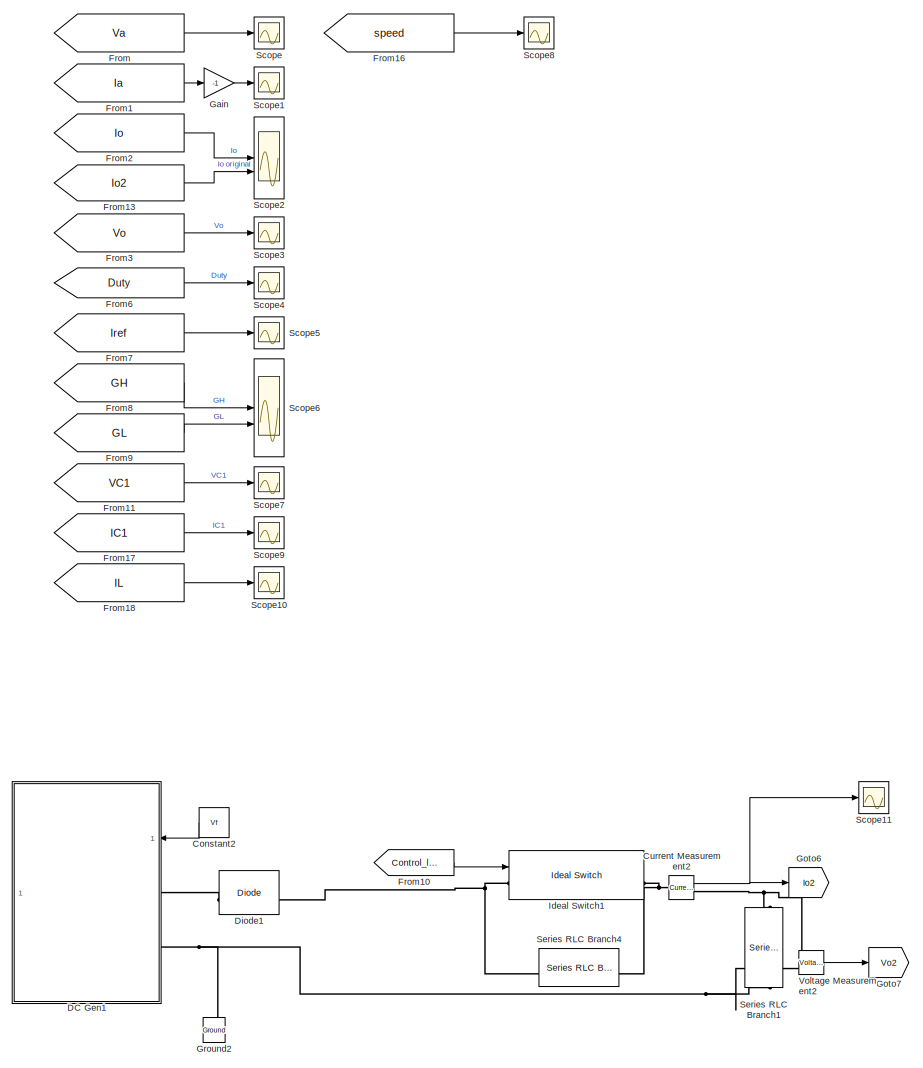
[diagram: root canvas - part 1/3, right side, full height]
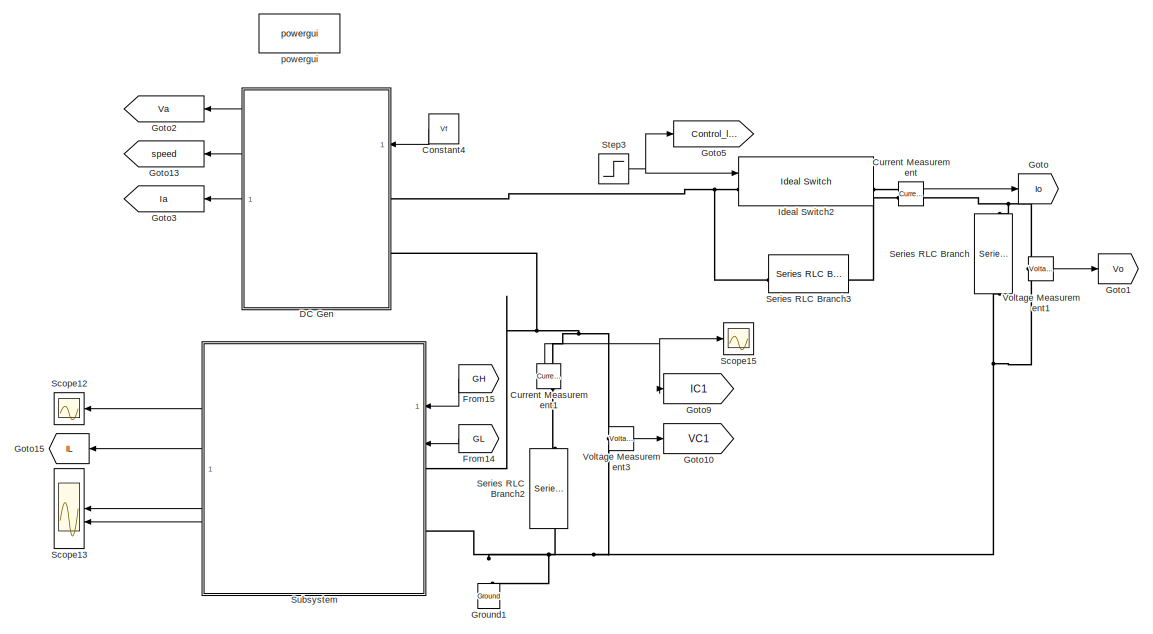
[diagram: root canvas - part 2/3, top left region]
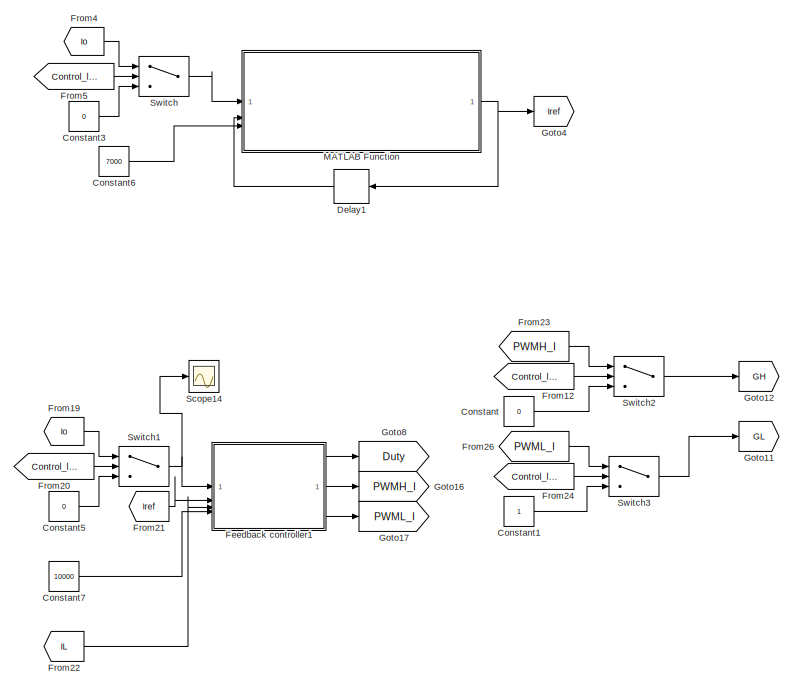
[diagram: root canvas - part 3/3, bottom left region]
MODEL slx_ac796de1ffbd
KIND model
CONFIG AbsTol = auto
CONFIG EnableMultiTasking = off
CONFIG FixedStep = auto
CONFIG MaxStep = auto
CONFIG MinStep = auto
CONFIG RelTol = 1e-3
CONFIG SampleTimeConstraint = Unconstrained
CONFIG SolverName = VariableStepAuto
CONFIG StartTime = 0.0
CONFIG StopTime = 10.0
BLOCK [Constant] Constant
  Value = 0
BLOCK [Constant] Constant1
BLOCK [Constant] Constant2
  NameLocation = top
  Value = Vf
BLOCK [Constant] Constant3
  Value = 0
BLOCK [Constant] Constant4
  NameLocation = top
  Value = Vf
BLOCK [Constant] Constant5
  Value = 0
BLOCK [Constant] Constant6
  Value = 7000
BLOCK [Constant] Constant7
  Value = 10000
BLOCK [Reference] Current Measurement  REF=spsCurrentMeasurementLib/Current Measurement
  LibrarySourceBlock = sps_lib/Sensors and Measurements/Current Measurement
  SourceBlock = spsCurrentMeasurementLib/Current Measurement
  SourceType = Current Measurement
  UserDataPersistent = on
BLOCK [Reference] Current Measurement1  REF=spsCurrentMeasurementLib/Current Measurement
  LibrarySourceBlock = sps_lib/Sensors and Measurements/Current Measurement
  NameLocation = right
  SourceBlock = spsCurrentMeasurementLib/Current Measurement
  SourceType = Current Measurement
  UserDataPersistent = on
BLOCK [Reference] Current Measurement2  REF=spsCurrentMeasurementLib/Current Measurement
  LibrarySourceBlock = sps_lib/Sensors and Measurements/Current Measurement
  SourceBlock = spsCurrentMeasurementLib/Current Measurement
  SourceType = Current Measurement
  UserDataPersistent = on
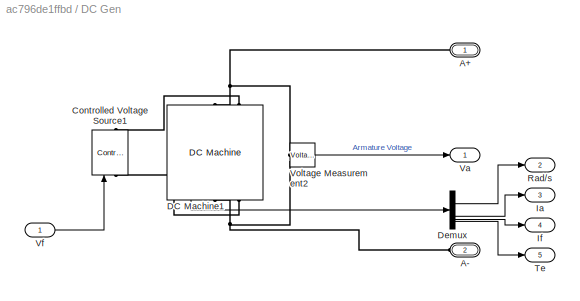
BLOCK [SubSystem] DC Gen
  NameLocation = top
BLOCK [PMIOPort] DC Gen/A+
  NameLocation = top
  Side = Left
BLOCK [PMIOPort] DC Gen/A-
  NameLocation = top
  Port = 2
  Side = Left
BLOCK [Reference] DC Gen/Controlled Voltage Source1  REF=spsControlledVoltageSourceLib/Controlled Voltage Source
  LibrarySourceBlock = sps_lib/Sources/Controlled Voltage Source
  NameLocation = right
  SourceBlock = spsControlledVoltageSourceLib/Controlled Voltage Source
  SourceType = Controlled Voltage Source
BLOCK [Reference] DC Gen/DC Machine1  REF=spsDCMachineLib/DC Machine
  LibrarySourceBlock = sps_lib/Electrical Machines/DC Machine
  NameLocation = left
  SourceBlock = spsDCMachineLib/DC Machine
  SourceType = DC machine
BLOCK [Demux] DC Gen/Demux
BLOCK [Outport] DC Gen/Ia
  Port = 3
BLOCK [Outport] DC Gen/If
  Port = 4
BLOCK [Outport] DC Gen/Rad//s
  Port = 2
BLOCK [Outport] DC Gen/Te
  Port = 5
BLOCK [Outport] DC Gen/Va
BLOCK [Inport] DC Gen/Vf
BLOCK [Reference] DC Gen/Voltage Measurement2  REF=spsVoltageMeasurementLib/Voltage Measurement
  LibrarySourceBlock = sps_lib/Sensors and Measurements/Voltage Measurement
  SourceBlock = spsVoltageMeasurementLib/Voltage Measurement
  SourceType = Voltage Measurement
  UserDataPersistent = on
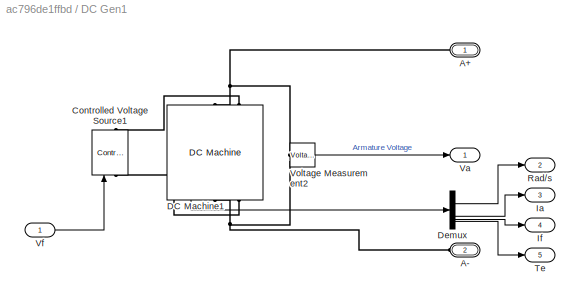
BLOCK [SubSystem] DC Gen1
  NameLocation = top
BLOCK [PMIOPort] DC Gen1/A+
  NameLocation = top
  Side = Left
BLOCK [PMIOPort] DC Gen1/A-
  NameLocation = top
  Port = 2
  Side = Left
BLOCK [Reference] DC Gen1/Controlled Voltage Source1  REF=spsControlledVoltageSourceLib/Controlled Voltage Source
  LibrarySourceBlock = sps_lib/Sources/Controlled Voltage Source
  NameLocation = right
  SourceBlock = spsControlledVoltageSourceLib/Controlled Voltage Source
  SourceType = Controlled Voltage Source
BLOCK [Reference] DC Gen1/DC Machine1  REF=spsDCMachineLib/DC Machine
  LibrarySourceBlock = sps_lib/Electrical Machines/DC Machine
  NameLocation = left
  SourceBlock = spsDCMachineLib/DC Machine
  SourceType = DC machine
BLOCK [Demux] DC Gen1/Demux
BLOCK [Outport] DC Gen1/Ia
  Port = 3
BLOCK [Outport] DC Gen1/If
  Port = 4
BLOCK [Outport] DC Gen1/Rad//s
  Port = 2
BLOCK [Outport] DC Gen1/Te
  Port = 5
BLOCK [Outport] DC Gen1/Va
BLOCK [Inport] DC Gen1/Vf
BLOCK [Reference] DC Gen1/Voltage Measurement2  REF=spsVoltageMeasurementLib/Voltage Measurement
  LibrarySourceBlock = sps_lib/Sensors and Measurements/Voltage Measurement
  SourceBlock = spsVoltageMeasurementLib/Voltage Measurement
  SourceType = Voltage Measurement
  UserDataPersistent = on
BLOCK [Delay] Delay1
  DelayLength = 1
  InitialCondition = 0
  InputPortMap = u0
  NameLocation = top
  SampleTime = Tsamp
BLOCK [Reference] Diode1  REF=spsDiodeLib/Diode
  LibrarySourceBlock = sps_lib/Power Electronics/Diode
  SourceBlock = spsDiodeLib/Diode
  SourceType = Diode
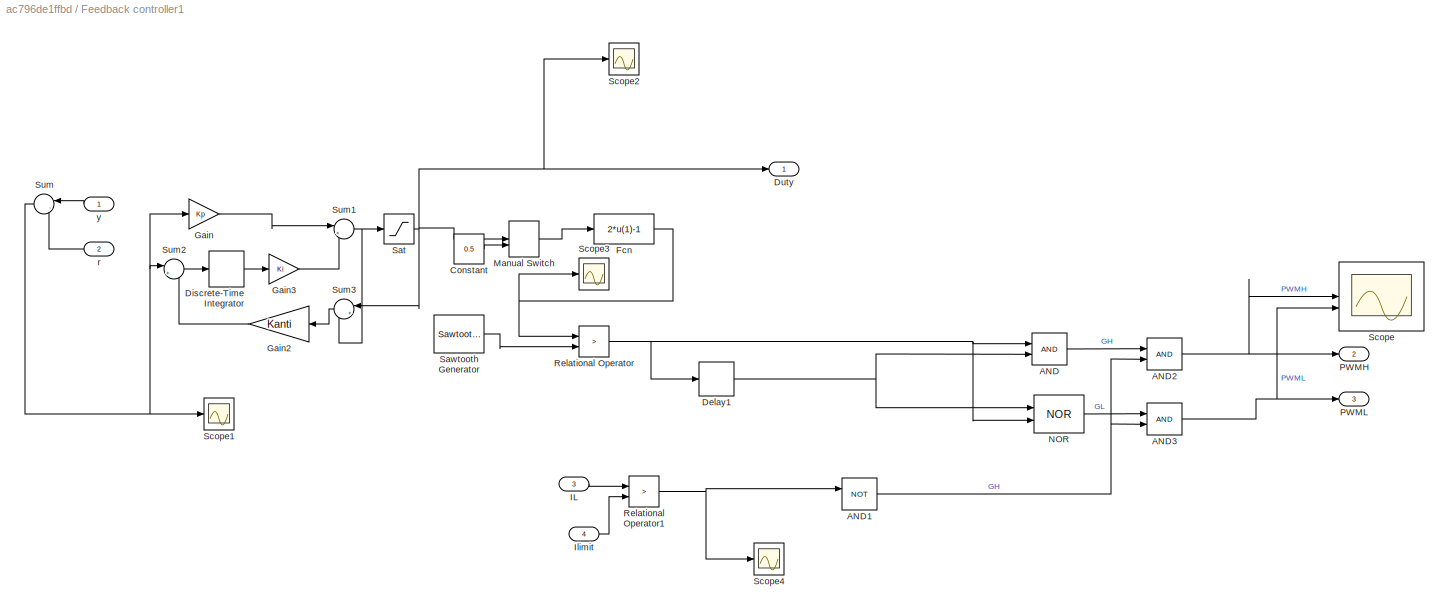
BLOCK [SubSystem] Feedback controller1
  NameLocation = top
BLOCK [Logic] Feedback controller1/AND
  AllPortsSameDT = off
  IconShape = distinctive
  OutDataTypeStr = boolean
BLOCK [Logic] Feedback controller1/AND1
  AllPortsSameDT = off
  IconShape = distinctive
  Operator = NOT
  OutDataTypeStr = boolean
BLOCK [Logic] Feedback controller1/AND2
  AllPortsSameDT = off
  IconShape = distinctive
  OutDataTypeStr = boolean
BLOCK [Logic] Feedback controller1/AND3
  AllPortsSameDT = off
  IconShape = distinctive
  OutDataTypeStr = boolean
BLOCK [Constant] Feedback controller1/Constant
  Value = 0.5
BLOCK [Delay] Feedback controller1/Delay1
  DelayLength = 1
  InitialCondition = 0
  InputPortMap = u0
  SampleTime = Tsamp
BLOCK [DiscreteIntegrator] Feedback controller1/Discrete-Time Integrator
  ICPrevOutput = DiscIntNeverNeededParam
  ICPrevScaledInput = DiscIntNeverNeededParam
  InitialConditionSetting = Auto
  SampleTime = Tsamp
BLOCK [Outport] Feedback controller1/Duty
  VectorParamsAs1DForOutWhenUnconnected = off
BLOCK [Fcn] Feedback controller1/Fcn
  Expr = 2*u(1)-1
BLOCK [Gain] Feedback controller1/Gain
  Gain = Kp
BLOCK [Gain] Feedback controller1/Gain2
  Gain = Kanti
  NameLocation = top
BLOCK [Gain] Feedback controller1/Gain3
  Gain = Ki
BLOCK [Inport] Feedback controller1/IL
  NameLocation = top
  Port = 3
BLOCK [Inport] Feedback controller1/Ilimit
  NameLocation = top
  Port = 4
BLOCK [ManualSwitch] Feedback controller1/Manual Switch
BLOCK [Logic] Feedback controller1/NOR
  AllPortsSameDT = off
  IconShape = distinctive
  Operator = NOR
BLOCK [Outport] Feedback controller1/PWMH
  Port = 2
  VectorParamsAs1DForOutWhenUnconnected = off
BLOCK [Outport] Feedback controller1/PWML
  Port = 3
  VectorParamsAs1DForOutWhenUnconnected = off
BLOCK [RelationalOperator] Feedback controller1/Relational Operator
  InputSameDT = off
  Operator = >
  OutDataTypeStr = boolean
  RndMeth = Simplest
BLOCK [RelationalOperator] Feedback controller1/Relational Operator1
  InputSameDT = off
  Operator = >
  OutDataTypeStr = boolean
  RndMeth = Simplest
BLOCK [Saturate] Feedback controller1/Sat
  LowerLimit = 0
  UpperLimit = 1
BLOCK [Reference] Feedback controller1/Sawtooth Generator  REF=spsSawtoothGeneratorLib/Sawtooth
Generator
  LibrarySourceBlock = sps_lib/Sources/Signal Generator Sources/Sawtooth\nGenerator
  SourceBlock = spsSawtoothGeneratorLib/Sawtooth\nGenerator
  SourceType = Sawtooth Generator
BLOCK [Scope] Feedback controller1/Scope
  Floating = off
  NumInputPorts = 2
  ScopeSpecificationString = Simulink.scopes.TimeScopeBlockCfg('CurrentConfiguration', extmgr.ConfigurationSet(extmgr.Configuration('Core','General UI',true),extmgr.Configuration('Core','Source UI',true),extmgr.Configuration('Sources','WiredSimulink',true,'DataLoggingVariableName','ScopeData3'),extmgr.Configuration('Visuals','Time Domain',true,'SerializedDisplays',{struct('MinYLimReal','-0.125','MaxYLimReal','1.125','YLabelRe...<+1429ch>
BLOCK [Scope] Feedback controller1/Scope1
  Floating = off
  NumInputPorts = 1
  ScopeSpecificationString = Simulink.scopes.TimeScopeBlockCfg('CurrentConfiguration', extmgr.ConfigurationSet(extmgr.Configuration('Core','General UI',true),extmgr.Configuration('Core','Source UI',true),extmgr.Configuration('Sources','WiredSimulink',true,'DataLoggingVariableName','ScopeData15'),extmgr.Configuration('Visuals','Time Domain',true,'SerializedDisplays',{struct('MinYLimReal','-886.78083','MaxYLimReal','7981.02746'...<+1434ch>
BLOCK [Scope] Feedback controller1/Scope2
  Floating = off
  NumInputPorts = 1
  ScopeSpecificationString = Simulink.scopes.TimeScopeBlockCfg('CurrentConfiguration', extmgr.ConfigurationSet(extmgr.Configuration('Core','General UI',true),extmgr.Configuration('Core','Source UI',true),extmgr.Configuration('Sources','WiredSimulink',true,'DataLoggingVariableName','ScopeData2'),extmgr.Configuration('Visuals','Time Domain',true,'SerializedDisplays',{struct('MinYLimReal','-1.00000','MaxYLimReal','1.00000','YLab...<+1435ch>
BLOCK [Scope] Feedback controller1/Scope3
  Floating = off
  NumInputPorts = 1
  ScopeSpecificationString = Simulink.scopes.TimeScopeBlockCfg('CurrentConfiguration', extmgr.ConfigurationSet(extmgr.Configuration('Core','General UI',true),extmgr.Configuration('Core','Source UI',true),extmgr.Configuration('Sources','WiredSimulink',true,'DataLoggingVariableName','ScopeData7'),extmgr.Configuration('Visuals','Time Domain',true,'SerializedDisplays',{struct('MinYLimReal','-1.00000','MaxYLimReal','1.00000','YLab...<+1435ch>
BLOCK [Scope] Feedback controller1/Scope4
  Floating = off
  NumInputPorts = 1
  ScopeSpecificationString = Simulink.scopes.TimeScopeBlockCfg('CurrentConfiguration', extmgr.ConfigurationSet(extmgr.Configuration('Core','General UI',true),extmgr.Configuration('Core','Source UI',true),extmgr.Configuration('Sources','WiredSimulink',true,'DataLoggingVariableName','ScopeData9'),extmgr.Configuration('Visuals','Time Domain',true,'SerializedDisplays',{struct('MinYLimReal','-0.125','MaxYLimReal','1.125','YLabelRe...<+1441ch>
BLOCK [Sum] Feedback controller1/Sum
  InputSameDT = on
  Inputs = |-+
  OutDataTypeStr = Inherit: Same as first input
  SaturateOnIntegerOverflow = on
BLOCK [Sum] Feedback controller1/Sum1
  Inputs = |++
BLOCK [Sum] Feedback controller1/Sum2
  Inputs = |+-
BLOCK [Sum] Feedback controller1/Sum3
  Inputs = |+-
  NameLocation = top
BLOCK [Inport] Feedback controller1/r
  Port = 2
BLOCK [Inport] Feedback controller1/y
BLOCK [From] From
  GotoTag = Va
BLOCK [From] From1
  GotoTag = Ia
BLOCK [From] From10
  GotoTag = Control_load
BLOCK [From] From11
  GotoTag = VC1
BLOCK [From] From12
  GotoTag = Control_load
BLOCK [From] From13
  GotoTag = Io2
BLOCK [From] From14
  GotoTag = GL
  NameLocation = top
BLOCK [From] From15
  GotoTag = GH
  NameLocation = top
BLOCK [From] From16
  GotoTag = speed
BLOCK [From] From17
  GotoTag = IC1
BLOCK [From] From18
  GotoTag = IL
BLOCK [From] From19
  GotoTag = Io
BLOCK [From] From2
  GotoTag = Io
BLOCK [From] From20
  GotoTag = Control_load
BLOCK [From] From21
  GotoTag = Iref
BLOCK [From] From22
  GotoTag = IL
  NameLocation = top
BLOCK [From] From23
  GotoTag = PWMH_I
BLOCK [From] From24
  GotoTag = Control_load
BLOCK [From] From26
  GotoTag = PWML_I
BLOCK [From] From3
  GotoTag = Vo
BLOCK [From] From4
  GotoTag = Io
BLOCK [From] From5
  GotoTag = Control_load
BLOCK [From] From6
  GotoTag = Duty
BLOCK [From] From7
  GotoTag = Iref
BLOCK [From] From8
  GotoTag = GH
BLOCK [From] From9
  GotoTag = GL
BLOCK [Gain] Gain
  Gain = -1
BLOCK [Goto] Goto
  GotoTag = Io
BLOCK [Goto] Goto1
  GotoTag = Vo
BLOCK [Goto] Goto10
  GotoTag = VC1
BLOCK [Goto] Goto11
  GotoTag = GL
BLOCK [Goto] Goto12
  GotoTag = GH
BLOCK [Goto] Goto13
  GotoTag = speed
  NameLocation = top
BLOCK [Goto] Goto15
  GotoTag = IL
  NameLocation = top
BLOCK [Goto] Goto16
  GotoTag = PWMH_I
BLOCK [Goto] Goto17
  GotoTag = PWML_I
BLOCK [Goto] Goto2
  GotoTag = Va
  NameLocation = top
BLOCK [Goto] Goto3
  GotoTag = Ia
  NameLocation = top
BLOCK [Goto] Goto4
  GotoTag = Iref
BLOCK [Goto] Goto5
  GotoTag = Control_load
BLOCK [Goto] Goto6
  GotoTag = Io2
BLOCK [Goto] Goto7
  GotoTag = Vo2
BLOCK [Goto] Goto8
  GotoTag = Duty
BLOCK [Goto] Goto9
  GotoTag = IC1
BLOCK [Reference] Ground1  REF=spsGroundLib/Ground
  LibrarySourceBlock = sps_lib/Utilities/Ground
  NameLocation = right
  SourceBlock = spsGroundLib/Ground
  SourceType = Ground
BLOCK [Reference] Ground2  REF=spsGroundLib/Ground
  LibrarySourceBlock = sps_lib/Utilities/Ground
  NameLocation = right
  SourceBlock = spsGroundLib/Ground
  SourceType = Ground
BLOCK [Reference] Ideal Switch1  REF=spsIdealSwitchLib/Ideal Switch
  LibrarySourceBlock = sps_lib/Power Electronics/Ideal Switch
  SourceBlock = spsIdealSwitchLib/Ideal Switch
  SourceType = Ideal Switch
BLOCK [Reference] Ideal Switch2  REF=spsIdealSwitchLib/Ideal Switch
  LibrarySourceBlock = sps_lib/Power Electronics/Ideal Switch
  SourceBlock = spsIdealSwitchLib/Ideal Switch
  SourceType = Ideal Switch
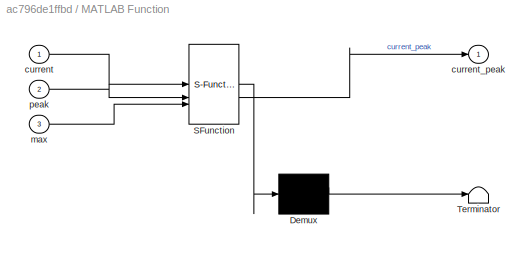
BLOCK [SubSystem] MATLAB Function
  ErrorFcn = Stateflow.Translate.translate
  PermitHierarchicalResolution = ExplicitOnly
  SFBlockType = MATLAB Function
  TreatAsAtomicUnit = on
BLOCK [Demux] MATLAB Function/ Demux 
  Outputs = 1
BLOCK [S-Function] MATLAB Function/ SFunction 
  EnableBusSupport = on
  FunctionName = sf_sfun
  PortCounts = [3 2]
  SFcnIsStateOwnerBlock = off
  SFunctionDeploymentMode = off
  Tag = Stateflow S-Function 2
BLOCK [Terminator] MATLAB Function/ Terminator 
BLOCK [Inport] MATLAB Function/current
BLOCK [Outport] MATLAB Function/current_peak
BLOCK [Inport] MATLAB Function/max
  Port = 3
BLOCK [Inport] MATLAB Function/peak
  Port = 2
BLOCK [Scope] Scope
  Floating = off
  NumInputPorts = 1
  ScopeSpecificationString = Simulink.scopes.TimeScopeBlockCfg('CurrentConfiguration', extmgr.ConfigurationSet(extmgr.Configuration('Core','General UI',true),extmgr.Configuration('Core','Source UI',true),extmgr.Configuration('Sources','WiredSimulink',true),extmgr.Configuration('Visuals','Time Domain',true,'SerializedDisplays',{struct('MinYLimReal','-1360.97247','MaxYLimReal','1299.37321','YLabelReal','','MinYLimMag','  0.0000...<+1459ch>
BLOCK [Scope] Scope1
  Floating = off
  NumInputPorts = 1
  ScopeSpecificationString = Simulink.scopes.TimeScopeBlockCfg('CurrentConfiguration', extmgr.ConfigurationSet(extmgr.Configuration('Core','General UI',true),extmgr.Configuration('Core','Source UI',true),extmgr.Configuration('Sources','WiredSimulink',true,'DataLoggingVariableName','ScopeData1'),extmgr.Configuration('Visuals','Time Domain',true,'SerializedDisplays',{struct('MinYLimReal','-12433.03825','MaxYLimReal','22717.2768...<+1465ch>
BLOCK [Scope] Scope10
  Floating = off
  NumInputPorts = 1
  ScopeSpecificationString = Simulink.scopes.TimeScopeBlockCfg('CurrentConfiguration', extmgr.ConfigurationSet(extmgr.Configuration('Core','General UI',true),extmgr.Configuration('Core','Source UI',true),extmgr.Configuration('Sources','WiredSimulink',true,'DataLoggingVariableName','ScopeData11'),extmgr.Configuration('Visuals','Time Domain',true,'SerializedDisplays',{struct('MinYLimReal','-7030.23625','MaxYLimReal','11906.8651...<+1469ch>
BLOCK [Scope] Scope11
  Floating = off
  NumInputPorts = 1
  ScopeSpecificationString = Simulink.scopes.TimeScopeBlockCfg('CurrentConfiguration', extmgr.ConfigurationSet(extmgr.Configuration('Core','General UI',true),extmgr.Configuration('Core','Source UI',true),extmgr.Configuration('Sources','WiredSimulink',true,'DataLoggingVariableName','ScopeData3'),extmgr.Configuration('Visuals','Time Domain',true,'SerializedDisplays',{struct('MinYLimReal','-825.33151','MaxYLimReal','7426.96003',...<+1451ch>
BLOCK [Scope] Scope12
  Floating = off
  NameLocation = top
  NumInputPorts = 1
  ScopeSpecificationString = Simulink.scopes.TimeScopeBlockCfg('CurrentConfiguration', extmgr.ConfigurationSet(extmgr.Configuration('Core','General UI',true),extmgr.Configuration('Core','Source UI',true),extmgr.Configuration('Sources','WiredSimulink',true,'DataLoggingVariableName','ScopeData10'),extmgr.Configuration('Visuals','Time Domain',true),extmgr.Configuration('Tools','Plot Navigation',true),extmgr.Configuration('Tools'...<+41ch>
BLOCK [Scope] Scope13
  Floating = off
  NameLocation = top
  NumInputPorts = 2
  ScopeSpecificationString = Simulink.scopes.TimeScopeBlockCfg('CurrentConfiguration', extmgr.ConfigurationSet(extmgr.Configuration('Core','General UI',true),extmgr.Configuration('Core','Source UI',true),extmgr.Configuration('Sources','WiredSimulink',true,'DataLoggingVariableName','ScopeData13'),extmgr.Configuration('Visuals','Time Domain',true,'SerializedDisplays',{struct('MinYLimReal','-3639.37328','MaxYLimReal','457.3082',...<+2104ch>
BLOCK [Scope] Scope14
  Floating = off
  NumInputPorts = 1
  ScopeSpecificationString = Simulink.scopes.TimeScopeBlockCfg('CurrentConfiguration', extmgr.ConfigurationSet(extmgr.Configuration('Core','General UI',true),extmgr.Configuration('Core','Source UI',true),extmgr.Configuration('Sources','WiredSimulink',true,'DataLoggingVariableName','ScopeData8'),extmgr.Configuration('Visuals','Time Domain',true,'SerializedDisplays',{struct('MinYLimReal','-1403.53569','MaxYLimReal','7464.2726',...<+1409ch>
BLOCK [Scope] Scope15
  Floating = off
  NumInputPorts = 1
  ScopeSpecificationString = Simulink.scopes.TimeScopeBlockCfg('CurrentConfiguration', extmgr.ConfigurationSet(extmgr.Configuration('Core','General UI',true),extmgr.Configuration('Core','Source UI',true),extmgr.Configuration('Sources','WiredSimulink',true,'DataLoggingVariableName','ScopeData5'),extmgr.Configuration('Visuals','Time Domain',true),extmgr.Configuration('Tools','Plot Navigation',true),extmgr.Configuration('Tools',...<+40ch>
BLOCK [Scope] Scope2
  Floating = off
  NumInputPorts = 2
  ScopeSpecificationString = Simulink.scopes.TimeScopeBlockCfg('CurrentConfiguration', extmgr.ConfigurationSet(extmgr.Configuration('Core','General UI',true),extmgr.Configuration('Core','Source UI',true),extmgr.Configuration('Sources','WiredSimulink',true,'DataLoggingVariableName','ScopeData2'),extmgr.Configuration('Visuals','Time Domain',true,'SerializedDisplays',{struct('MinYLimReal','-7025.02356','MaxYLimReal','11898.6935'...<+1470ch>
BLOCK [Scope] Scope3
  Floating = off
  NumInputPorts = 1
  ScopeSpecificationString = Simulink.scopes.TimeScopeBlockCfg('CurrentConfiguration', extmgr.ConfigurationSet(extmgr.Configuration('Core','General UI',true),extmgr.Configuration('Core','Source UI',true),extmgr.Configuration('Sources','WiredSimulink',true,'DataLoggingVariableName','ScopeData3'),extmgr.Configuration('Visuals','Time Domain',true,'SerializedDisplays',{struct('MinYLimReal','-771.37451','MaxYLimReal','2599.79058',...<+1454ch>
BLOCK [Scope] Scope4
  Floating = off
  NumInputPorts = 1
  ScopeSpecificationString = Simulink.scopes.TimeScopeBlockCfg('CurrentConfiguration', extmgr.ConfigurationSet(extmgr.Configuration('Core','General UI',true),extmgr.Configuration('Core','Source UI',true),extmgr.Configuration('Sources','WiredSimulink',true,'DataLoggingVariableName','ScopeData4'),extmgr.Configuration('Visuals','Time Domain',true,'SerializedDisplays',{struct('MinYLimReal','-0.125','MaxYLimReal','1.125','YLabelRe...<+1451ch>
BLOCK [Scope] Scope5
  Floating = off
  NumInputPorts = 1
  ScopeSpecificationString = Simulink.scopes.TimeScopeBlockCfg('CurrentConfiguration', extmgr.ConfigurationSet(extmgr.Configuration('Core','General UI',true),extmgr.Configuration('Core','Source UI',true),extmgr.Configuration('Sources','WiredSimulink',true,'DataLoggingVariableName','ScopeData5'),extmgr.Configuration('Visuals','Time Domain',true,'SerializedDisplays',{struct('MinYLimReal','-875.02814','MaxYLimReal','7875.25325',...<+1435ch>
BLOCK [Scope] Scope6
  Floating = off
  NumInputPorts = 2
  ScopeSpecificationString = Simulink.scopes.TimeScopeBlockCfg('CurrentConfiguration', extmgr.ConfigurationSet(extmgr.Configuration('Core','General UI',true),extmgr.Configuration('Core','Source UI',true),extmgr.Configuration('Sources','WiredSimulink',true,'DataLoggingVariableName','ScopeData6'),extmgr.Configuration('Visuals','Time Domain',true,'SerializedDisplays',{struct('MinYLimReal','-0.125','MaxYLimReal','1.125','YLabelRe...<+2083ch>
BLOCK [Scope] Scope7
  Floating = off
  NumInputPorts = 1
  ScopeSpecificationString = Simulink.scopes.TimeScopeBlockCfg('CurrentConfiguration', extmgr.ConfigurationSet(extmgr.Configuration('Core','General UI',true),extmgr.Configuration('Core','Source UI',true),extmgr.Configuration('Sources','WiredSimulink',true,'DataLoggingVariableName','ScopeData1'),extmgr.Configuration('Visuals','Time Domain',true,'SerializedDisplays',{struct('MinYLimReal','-526.07833','MaxYLimReal','737.24434','...<+1475ch>
BLOCK [Scope] Scope8
  Floating = off
  NumInputPorts = 1
  ScopeSpecificationString = Simulink.scopes.TimeScopeBlockCfg('CurrentConfiguration', extmgr.ConfigurationSet(extmgr.Configuration('Core','General UI',true),extmgr.Configuration('Core','Source UI',true),extmgr.Configuration('Sources','WiredSimulink',true,'DataLoggingVariableName','ScopeData8'),extmgr.Configuration('Visuals','Time Domain',true,'SerializedDisplays',{struct('MinYLimReal','-173.66216','MaxYLimReal','217.09978','...<+1454ch>
BLOCK [Scope] Scope9
  Floating = off
  NumInputPorts = 1
  ScopeSpecificationString = Simulink.scopes.TimeScopeBlockCfg('CurrentConfiguration', extmgr.ConfigurationSet(extmgr.Configuration('Core','General UI',true),extmgr.Configuration('Core','Source UI',true),extmgr.Configuration('Sources','WiredSimulink',true,'DataLoggingVariableName','ScopeData9'),extmgr.Configuration('Visuals','Time Domain',true,'SerializedDisplays',{struct('MinYLimReal','-196.38542','MaxYLimReal','203.04858','...<+1484ch>
BLOCK [Reference] Series RLC Branch  REF=spsSeriesRLCBranchLib/Series RLC Branch
  LibrarySourceBlock = sps_lib/Passives/Series RLC Branch
  NameLocation = left
  SourceBlock = spsSeriesRLCBranchLib/Series RLC Branch
  SourceType = Series RLC Branch
BLOCK [Reference] Series RLC Branch1  REF=spsSeriesRLCBranchLib/Series RLC Branch
  LibrarySourceBlock = sps_lib/Passives/Series RLC Branch
  NameLocation = left
  SourceBlock = spsSeriesRLCBranchLib/Series RLC Branch
  SourceType = Series RLC Branch
BLOCK [Reference] Series RLC Branch2  REF=spsSeriesRLCBranchLib/Series RLC Branch
  LibrarySourceBlock = sps_lib/Passives/Series RLC Branch
  NameLocation = left
  SourceBlock = spsSeriesRLCBranchLib/Series RLC Branch
  SourceType = Series RLC Branch
BLOCK [Reference] Series RLC Branch3  REF=spsSeriesRLCBranchLib/Series RLC Branch
  LibrarySourceBlock = sps_lib/Passives/Series RLC Branch
  NameLocation = top
  SourceBlock = spsSeriesRLCBranchLib/Series RLC Branch
  SourceType = Series RLC Branch
BLOCK [Reference] Series RLC Branch4  REF=spsSeriesRLCBranchLib/Series RLC Branch
  LibrarySourceBlock = sps_lib/Passives/Series RLC Branch
  NameLocation = top
  SourceBlock = spsSeriesRLCBranchLib/Series RLC Branch
  SourceType = Series RLC Branch
BLOCK [Step] Step3
  SampleTime = 0
  Time = 4
  VectorParams1D = off
  ZeroCross = off
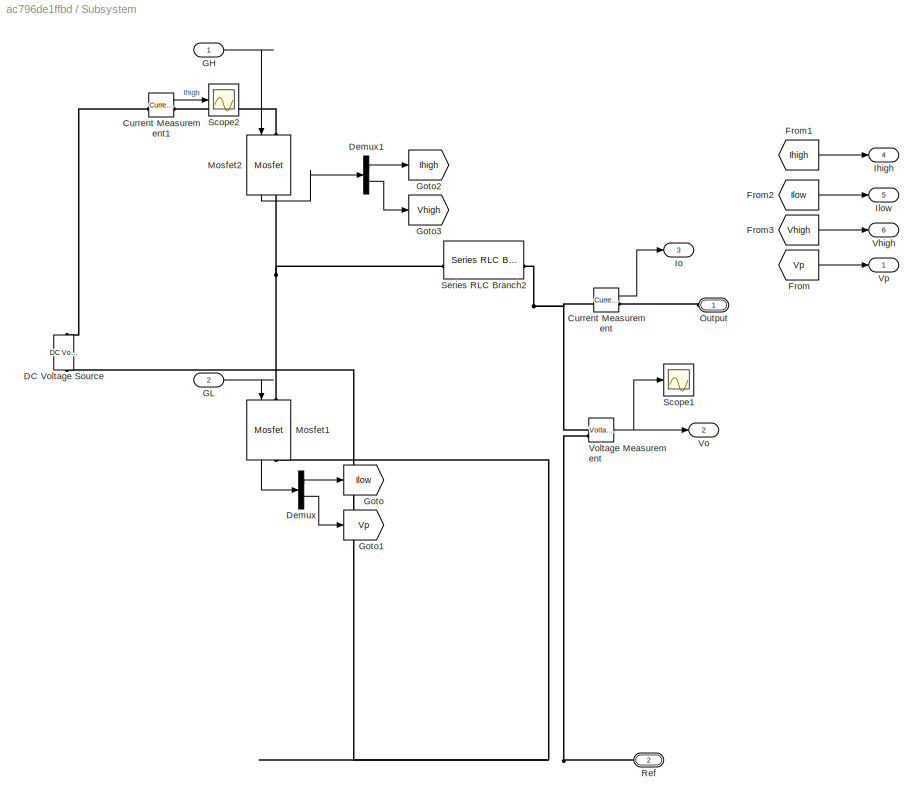
BLOCK [SubSystem] Subsystem
  NameLocation = top
BLOCK [Reference] Subsystem/Current Measurement  REF=spsCurrentMeasurementLib/Current Measurement
  LibrarySourceBlock = sps_lib/Sensors and Measurements/Current Measurement
  SourceBlock = spsCurrentMeasurementLib/Current Measurement
  SourceType = Current Measurement
  UserDataPersistent = on
BLOCK [Reference] Subsystem/Current Measurement1  REF=spsCurrentMeasurementLib/Current Measurement
  LibrarySourceBlock = sps_lib/Sensors and Measurements/Current Measurement
  SourceBlock = spsCurrentMeasurementLib/Current Measurement
  SourceType = Current Measurement
  UserDataPersistent = on
BLOCK [Reference] Subsystem/DC Voltage Source  REF=spsDCVoltageSourceLib/DC Voltage Source
  LibrarySourceBlock = sps_lib/Sources/DC Voltage Source
  SourceBlock = spsDCVoltageSourceLib/DC Voltage Source
  SourceType = DC Voltage Source
BLOCK [Demux] Subsystem/Demux
  Outputs = 2
BLOCK [Demux] Subsystem/Demux1
  Outputs = 2
BLOCK [From] Subsystem/From
  GotoTag = Vp
BLOCK [From] Subsystem/From1
  GotoTag = Ihigh
BLOCK [From] Subsystem/From2
  GotoTag = Ilow
BLOCK [From] Subsystem/From3
  GotoTag = Vhigh
BLOCK [Inport] Subsystem/GH
BLOCK [Inport] Subsystem/GL
  Port = 2
BLOCK [Goto] Subsystem/Goto
  GotoTag = Ilow
BLOCK [Goto] Subsystem/Goto1
  GotoTag = Vp
BLOCK [Goto] Subsystem/Goto2
  GotoTag = Ihigh
BLOCK [Goto] Subsystem/Goto3
  GotoTag = Vhigh
BLOCK [Outport] Subsystem/Ihigh
  Port = 4
BLOCK [Outport] Subsystem/Ilow
  Port = 5
BLOCK [Outport] Subsystem/Io
  Port = 3
BLOCK [Reference] Subsystem/Mosfet1  REF=spsMosfetLib/Mosfet
  LibrarySourceBlock = sps_lib/Power Electronics/Mosfet
  NameLocation = left
  SourceBlock = spsMosfetLib/Mosfet
  SourceType = Mosfet
BLOCK [Reference] Subsystem/Mosfet2  REF=spsMosfetLib/Mosfet
  LibrarySourceBlock = sps_lib/Power Electronics/Mosfet
  NameLocation = left
  SourceBlock = spsMosfetLib/Mosfet
  SourceType = Mosfet
BLOCK [PMIOPort] Subsystem/Output
  NameLocation = top
  Side = Left
BLOCK [PMIOPort] Subsystem/Ref
  NameLocation = top
  Port = 2
  Side = Left
BLOCK [Scope] Subsystem/Scope1
  Floating = off
  NumInputPorts = 1
  ScopeSpecificationString = Simulink.scopes.TimeScopeBlockCfg('CurrentConfiguration', extmgr.ConfigurationSet(extmgr.Configuration('Core','General UI',true),extmgr.Configuration('Core','Source UI',true),extmgr.Configuration('Sources','WiredSimulink',true,'DataLoggingVariableName','ScopeData4'),extmgr.Configuration('Visuals','Time Domain',true,'SerializedDisplays',{struct('MinYLimReal','-1212.96499','MaxYLimReal','1719.40148'...<+1473ch>
BLOCK [Scope] Subsystem/Scope2
  Floating = off
  NumInputPorts = 1
  ScopeSpecificationString = Simulink.scopes.TimeScopeBlockCfg('CurrentConfiguration', extmgr.ConfigurationSet(extmgr.Configuration('Core','General UI',true),extmgr.Configuration('Core','Source UI',true),extmgr.Configuration('Sources','WiredSimulink',true,'DataLoggingVariableName','ScopeData14'),extmgr.Configuration('Visuals','Time Domain',true,'SerializedDisplays',{struct('MinYLimReal','-1445.73327','MaxYLimReal','7465.23105...<+1487ch>
BLOCK [Reference] Subsystem/Series RLC Branch2  REF=spsSeriesRLCBranchLib/Series RLC Branch
  LibrarySourceBlock = sps_lib/Passives/Series RLC Branch
  SourceBlock = spsSeriesRLCBranchLib/Series RLC Branch
  SourceType = Series RLC Branch
BLOCK [Outport] Subsystem/Vhigh
  Port = 6
BLOCK [Outport] Subsystem/Vo
  Port = 2
BLOCK [Reference] Subsystem/Voltage Measurement  REF=spsVoltageMeasurementLib/Voltage Measurement
  LibrarySourceBlock = sps_lib/Sensors and Measurements/Voltage Measurement
  SourceBlock = spsVoltageMeasurementLib/Voltage Measurement
  SourceType = Voltage Measurement
  UserDataPersistent = on
BLOCK [Outport] Subsystem/Vp
BLOCK [Switch] Switch
  Criteria = u2 > Threshold
  InputSameDT = off
  SaturateOnIntegerOverflow = off
BLOCK [Switch] Switch1
  Criteria = u2 > Threshold
  InputSameDT = off
  SaturateOnIntegerOverflow = off
BLOCK [Switch] Switch2
  Criteria = u2 > Threshold
  InputSameDT = off
  SaturateOnIntegerOverflow = off
BLOCK [Switch] Switch3
  Criteria = u2 > Threshold
  InputSameDT = off
  SaturateOnIntegerOverflow = off
BLOCK [Reference] Voltage Measurement1  REF=spsVoltageMeasurementLib/Voltage Measurement
  LibrarySourceBlock = sps_lib/Sensors and Measurements/Voltage Measurement
  SourceBlock = spsVoltageMeasurementLib/Voltage Measurement
  SourceType = Voltage Measurement
  UserDataPersistent = on
BLOCK [Reference] Voltage Measurement2  REF=spsVoltageMeasurementLib/Voltage Measurement
  LibrarySourceBlock = sps_lib/Sensors and Measurements/Voltage Measurement
  SourceBlock = spsVoltageMeasurementLib/Voltage Measurement
  SourceType = Voltage Measurement
  UserDataPersistent = on
BLOCK [Reference] Voltage Measurement3  REF=spsVoltageMeasurementLib/Voltage Measurement
  LibrarySourceBlock = sps_lib/Sensors and Measurements/Voltage Measurement
  SourceBlock = spsVoltageMeasurementLib/Voltage Measurement
  SourceType = Voltage Measurement
  UserDataPersistent = on
BLOCK [Reference] powergui  REF=sps_lib/powergui
  LibrarySourceBlock = sps_lib/powergui
  Priority = 1
  SourceBlock = sps_lib/powergui
  SourceType = PSB option menu block
LINE Constant1:1 -> Switch3:3
LINE Constant2:1 -> DC Gen1:1
LINE Constant3:1 -> Switch:3
LINE Constant4:1 -> DC Gen:1
LINE Constant5:1 -> Switch1:3
LINE Constant6:1 -> MATLAB Function:3
LINE Constant7:1 -> Feedback controller1:4
LINE Constant:1 -> Switch2:3
NET Current Measurement1:1 -> Goto9:1, Scope15:1
NET Current Measurement2:1 -> Goto6:1, Scope11:1
LINE Current Measurement:1 -> Goto:1
LINE DC Gen/DC Machine1:1 -> DC Gen/Demux:1
LINE DC Gen/Demux:1 -> DC Gen/Rad//s:1
LINE DC Gen/Demux:2 -> DC Gen/Ia:1
LINE DC Gen/Demux:3 -> DC Gen/If:1
LINE DC Gen/Demux:4 -> DC Gen/Te:1
LINE DC Gen/Vf:1 -> DC Gen/Controlled Voltage Source1:1
LINE DC Gen/Voltage Measurement2:1 -> DC Gen/Va:1
LINE DC Gen1/DC Machine1:1 -> DC Gen1/Demux:1
LINE DC Gen1/Demux:1 -> DC Gen1/Rad//s:1
LINE DC Gen1/Demux:2 -> DC Gen1/Ia:1
LINE DC Gen1/Demux:3 -> DC Gen1/If:1
LINE DC Gen1/Demux:4 -> DC Gen1/Te:1
LINE DC Gen1/Vf:1 -> DC Gen1/Controlled Voltage Source1:1
LINE DC Gen1/Voltage Measurement2:1 -> DC Gen1/Va:1
LINE DC Gen:1 -> Goto2:1
LINE DC Gen:2 -> Goto13:1
LINE DC Gen:3 -> Goto3:1
LINE Delay1:1 -> MATLAB Function:2
NET Feedback controller1/AND1:1 -> Feedback controller1/AND2:2, Feedback controller1/AND3:2
NET Feedback controller1/AND2:1 -> Feedback controller1/PWMH:1, Feedback controller1/Scope:1
NET Feedback controller1/AND3:1 -> Feedback controller1/PWML:1, Feedback controller1/Scope:2
LINE Feedback controller1/AND:1 -> Feedback controller1/AND2:1
LINE Feedback controller1/Constant:1 -> Feedback controller1/Manual Switch:2
NET Feedback controller1/Delay1:1 -> Feedback controller1/AND:2, Feedback controller1/NOR:1
LINE Feedback controller1/Discrete-Time Integrator:1 -> Feedback controller1/Gain3:1
NET Feedback controller1/Fcn:1 -> Feedback controller1/Relational Operator:1, Feedback controller1/Scope3:1
LINE Feedback controller1/Gain2:1 -> Feedback controller1/Sum2:2
LINE Feedback controller1/Gain3:1 -> Feedback controller1/Sum1:2
LINE Feedback controller1/Gain:1 -> Feedback controller1/Sum1:1
LINE Feedback controller1/IL:1 -> Feedback controller1/Relational Operator1:1
LINE Feedback controller1/Ilimit:1 -> Feedback controller1/Relational Operator1:2
LINE Feedback controller1/Manual Switch:1 -> Feedback controller1/Fcn:1
LINE Feedback controller1/NOR:1 -> Feedback controller1/AND3:1
NET Feedback controller1/Relational Operator1:1 -> Feedback controller1/AND1:1, Feedback controller1/Scope4:1
NET Feedback controller1/Relational Operator:1 -> Feedback controller1/AND:1, Feedback controller1/Delay1:1, Feedback controller1/NOR:2
NET Feedback controller1/Sat:1 -> Feedback controller1/Duty:1, Feedback controller1/Manual Switch:1, Feedback controller1/Scope2:1, Feedback controller1/Sum3:1
LINE Feedback controller1/Sawtooth Generator:1 -> Feedback controller1/Relational Operator:2
NET Feedback controller1/Sum1:1 -> Feedback controller1/Sat:1, Feedback controller1/Sum3:2
LINE Feedback controller1/Sum2:1 -> Feedback controller1/Discrete-Time Integrator:1
LINE Feedback controller1/Sum3:1 -> Feedback controller1/Gain2:1
NET Feedback controller1/Sum:1 -> Feedback controller1/Gain:1, Feedback controller1/Scope1:1, Feedback controller1/Sum2:1
LINE Feedback controller1/r:1 -> Feedback controller1/Sum:2
LINE Feedback controller1/y:1 -> Feedback controller1/Sum:1
LINE Feedback controller1:1 -> Goto8:1
LINE Feedback controller1:2 -> Goto16:1
LINE Feedback controller1:3 -> Goto17:1
LINE From10:1 -> Ideal Switch1:1
LINE From11:1 -> Scope7:1
LINE From12:1 -> Switch2:2
LINE From13:1 -> Scope2:2
LINE From14:1 -> Subsystem:2
LINE From15:1 -> Subsystem:1
LINE From16:1 -> Scope8:1
LINE From17:1 -> Scope9:1
LINE From18:1 -> Scope10:1
LINE From19:1 -> Switch1:1
LINE From1:1 -> Gain:1
LINE From20:1 -> Switch1:2
LINE From21:1 -> Feedback controller1:2
LINE From22:1 -> Feedback controller1:3
LINE From23:1 -> Switch2:1
LINE From24:1 -> Switch3:2
LINE From26:1 -> Switch3:1
LINE From2:1 -> Scope2:1
LINE From3:1 -> Scope3:1
LINE From4:1 -> Switch:1
LINE From5:1 -> Switch:2
LINE From6:1 -> Scope4:1
LINE From7:1 -> Scope5:1
LINE From8:1 -> Scope6:1
LINE From9:1 -> Scope6:2
LINE From:1 -> Scope:1
LINE Gain:1 -> Scope1:1
NET MATLAB Function:1 -> Delay1:1, Goto4:1
NET Step3:1 -> Goto5:1, Ideal Switch2:1
LINE Subsystem/Current Measurement1:1 -> Subsystem/Scope2:1
LINE Subsystem/Current Measurement:1 -> Subsystem/Io:1
LINE Subsystem/Demux1:1 -> Subsystem/Goto2:1
LINE Subsystem/Demux1:2 -> Subsystem/Goto3:1
LINE Subsystem/Demux:1 -> Subsystem/Goto:1
LINE Subsystem/Demux:2 -> Subsystem/Goto1:1
LINE Subsystem/From1:1 -> Subsystem/Ihigh:1
LINE Subsystem/From2:1 -> Subsystem/Ilow:1
LINE Subsystem/From3:1 -> Subsystem/Vhigh:1
LINE Subsystem/From:1 -> Subsystem/Vp:1
LINE Subsystem/GH:1 -> Subsystem/Mosfet2:1
LINE Subsystem/GL:1 -> Subsystem/Mosfet1:1
LINE Subsystem/Mosfet1:1 -> Subsystem/Demux:1
LINE Subsystem/Mosfet2:1 -> Subsystem/Demux1:1
NET Subsystem/Voltage Measurement:1 -> Subsystem/Scope1:1, Subsystem/Vo:1
LINE Subsystem:2 -> Scope12:1
LINE Subsystem:3 -> Goto15:1
LINE Subsystem:4 -> Scope13:1
LINE Subsystem:5 -> Scope13:2
NET Switch1:1 -> Feedback controller1:1, Scope14:1
LINE Switch2:1 -> Goto12:1
LINE Switch3:1 -> Goto11:1
LINE Switch:1 -> MATLAB Function:1
LINE Voltage Measurement1:1 -> Goto1:1
LINE Voltage Measurement2:1 -> Goto7:1
LINE Voltage Measurement3:1 -> Goto10:1
PLINE Current Measurement1:LConn1 -- Series RLC Branch2:LConn1
PNET net1: Current Measurement1:RConn1 -- DC Gen:LConn2 -- Subsystem:LConn1 -- Voltage Measurement3:LConn1
PNET net2: Current Measurement2:LConn1 -- Ideal Switch1:RConn1 -- Series RLC Branch4:LConn1
PNET net3: Current Measurement2:RConn1 -- Series RLC Branch1:LConn1 -- Voltage Measurement2:LConn1
PNET net4: Current Measurement:LConn1 -- Ideal Switch2:RConn1 -- Series RLC Branch3:LConn1
PNET net5: Current Measurement:RConn1 -- Series RLC Branch:LConn1 -- Voltage Measurement1:LConn1
PNET net6: DC Gen/A+:RConn1 -- DC Gen/DC Machine1:LConn1 -- DC Gen/Voltage Measurement2:LConn1
PNET net7: DC Gen/A-:RConn1 -- DC Gen/DC Machine1:RConn1 -- DC Gen/Voltage Measurement2:LConn2
PLINE DC Gen/Controlled Voltage Source1:LConn1 -- DC Gen/DC Machine1:RConn2
PLINE DC Gen/Controlled Voltage Source1:RConn1 -- DC Gen/DC Machine1:LConn2
PNET net8: DC Gen1/A+:RConn1 -- DC Gen1/DC Machine1:LConn1 -- DC Gen1/Voltage Measurement2:LConn1
PNET net9: DC Gen1/A-:RConn1 -- DC Gen1/DC Machine1:RConn1 -- DC Gen1/Voltage Measurement2:LConn2
PLINE DC Gen1/Controlled Voltage Source1:LConn1 -- DC Gen1/DC Machine1:RConn2
PLINE DC Gen1/Controlled Voltage Source1:RConn1 -- DC Gen1/DC Machine1:LConn2
PLINE DC Gen1:LConn1 -- Diode1:LConn1
PNET net10: DC Gen1:LConn2 -- Ground2:LConn1 -- Series RLC Branch1:RConn1 -- Voltage Measurement2:LConn2
PNET net11: DC Gen:LConn1 -- Ideal Switch2:LConn1 -- Series RLC Branch3:RConn1
PNET net12: Diode1:RConn1 -- Ideal Switch1:LConn1 -- Series RLC Branch4:RConn1
PNET net13: Ground1:LConn1 -- Series RLC Branch2:RConn1 -- Series RLC Branch:RConn1 -- Subsystem:LConn2 -- Voltage Measurement1:LConn2 -- Voltage Measurement3:LConn2
PLINE Subsystem/Current Measurement1:LConn1 -- Subsystem/DC Voltage Source:RConn1
PLINE Subsystem/Current Measurement1:RConn1 -- Subsystem/Mosfet2:LConn1
PNET net14: Subsystem/Current Measurement:LConn1 -- Subsystem/Series RLC Branch2:RConn1 -- Subsystem/Voltage Measurement:LConn1
PLINE Subsystem/Current Measurement:RConn1 -- Subsystem/Output:RConn1
PNET net15: Subsystem/DC Voltage Source:LConn1 -- Subsystem/Mosfet1:RConn1 -- Subsystem/Ref:RConn1 -- Subsystem/Voltage Measurement:LConn2
PNET net16: Subsystem/Mosfet1:LConn1 -- Subsystem/Mosfet2:RConn1 -- Subsystem/Series RLC Branch2:LConn1
note: NET lines group one-source signal fan-out (src -> all destinations, sorted); 1:1 wires keep LINE; PNET lines group multi-terminal physical nets as a canonical sorted terminal list (undirected conserving connections); 2-terminal nets keep the pairwise PLINE form
CHART MATLAB Function states=1 transitions=1
  STATE_LABEL 'eML_blk_kernel()'
  STATE_LABEL 'SCRIPT:\nfunction current_peak = fcn(current, peak,max)\n    if current>peak\n        current_peak = current;\n    else\n        current_peak = peak;\n    end\n\n    if (max ~= 0)&&(peak>=max)\n        current_peak = max;\n     \n    end\n\n'
CHART  states=0 transitions=0
